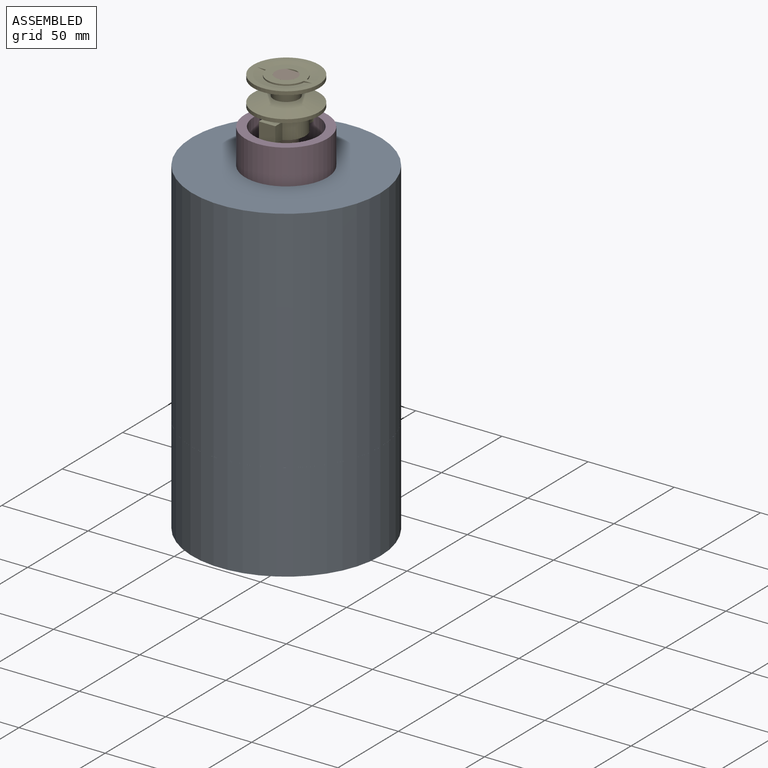
[diagram: assembled view]
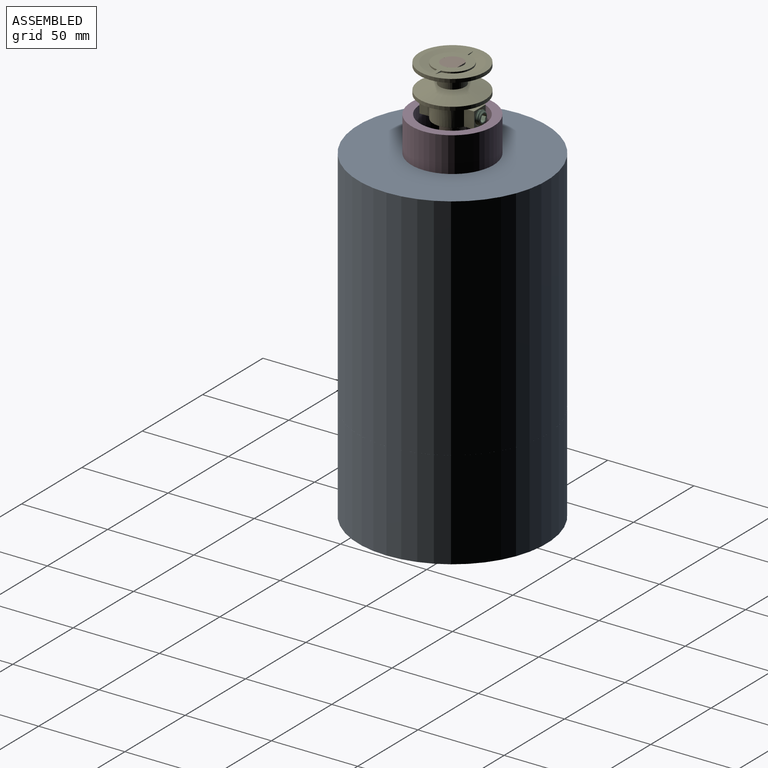
[diagram: assembled view, second angle]
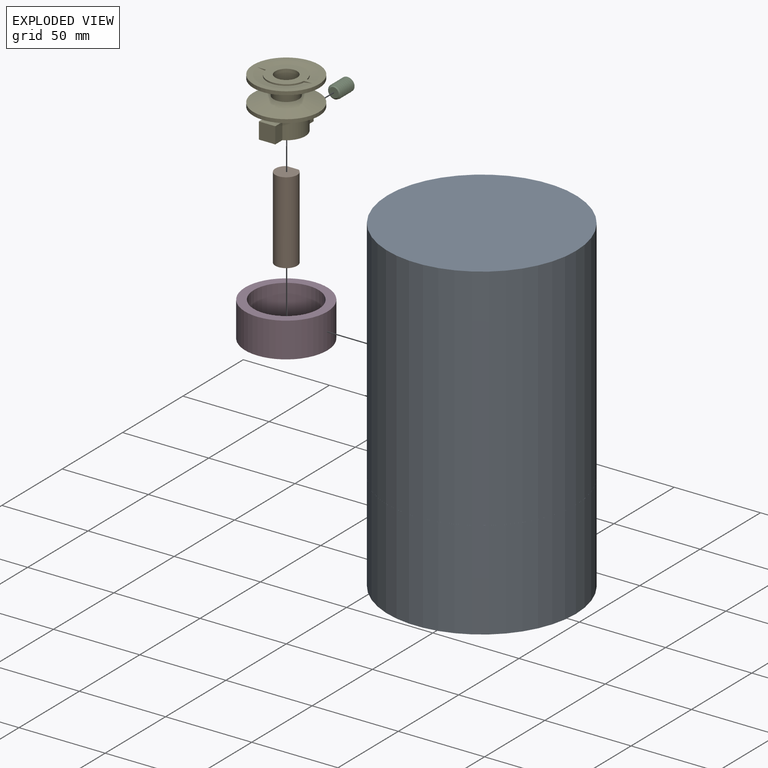
[diagram: exploded view]
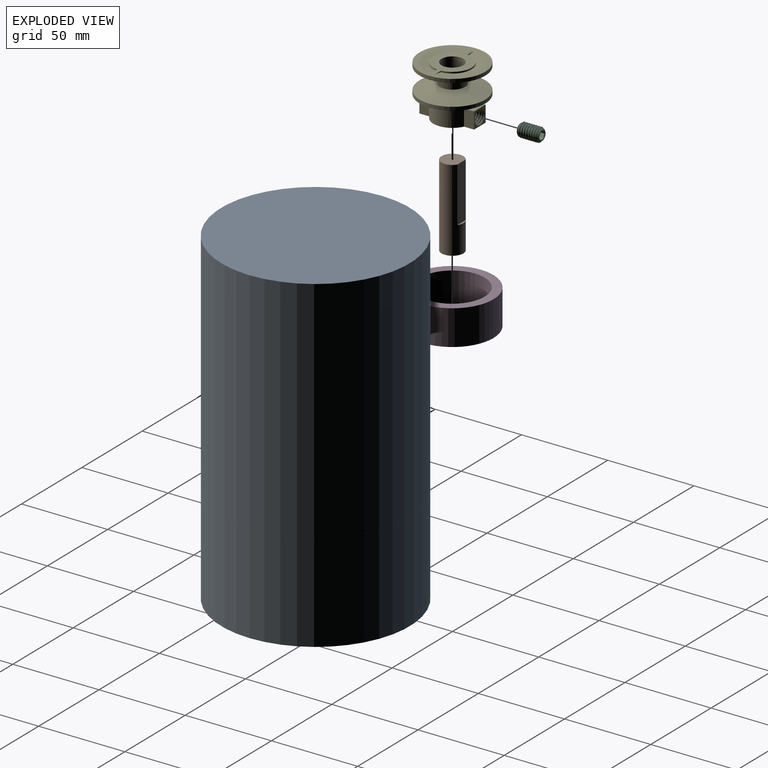
[diagram: exploded view, second angle]
ASSEMBLY  parts=5 mates=2
PART A: 7 faces, bbox 109.2x109.2x190.2 mm
  f0: cylinder r=54.61mm len=109.22mm, axis (0,0,1), area 5011.3mm2, adj f1,f2
  f1: plane 109.22x109.22mm, normal (0,0,-1), area 4.4mm2, adj f0,f3
  f2: plane 109.22x109.22mm, normal (0,0,1), area 9369mm2, adj f0
  f3: cylinder r=54.6mm len=118.49mm, axis (0,0,1), area 40647.7mm2, adj f1,f6
  f4: cylinder r=54.61mm len=109.22mm, axis (0,0,1), area 19609.6mm2, adj f5,f6
  f5: plane 109.22x109.22mm, normal (0,0,-1), area 9369mm2, adj f4
  f6: plane 109.22x109.22mm, normal (0,0,1), area 4.4mm2, adj f3,f4
PART B: 5 faces, bbox 12.7x12.7x47.6 mm
  f0: cylinder r=6.35mm len=47.63mm, axis (0,0,1), area 1665.3mm2, adj f1,f2,f3,f4
  f1: plane 12.7x11.65mm, normal (0,0,1), area 121.7mm2, adj f0,f3
  f2: plane 12.7x12.7mm, normal (0,0,-1), area 126.7mm2, adj f0
  f3: plane 31.75x6.99mm, normal (0,1,0), area 221.8mm2, adj f0,f1,f4
  f4: plane 6.99x1.05mm, normal (0,0,1), area 5mm2, adj f0,f3
PART C: 21 faces, bbox 9x14.5x9 mm
  f0: cone r=3.97mm half-angle=45deg, axis (0,1,0), area 17.9mm2, adj f1,f4,f5,f6,f7
  f1: cylinder r=3.97mm len=10.56mm, axis (0,1,0), area 32.9mm2, adj f0,f2,f5,f6
  f2: cone r=2.9mm half-angle=45deg, axis (0,-1,0), area 17.9mm2, adj f1,f3,f5,f6,f7
  f3: plane 5.8x5.8mm, normal (0,1,0), area 9.9mm2, adj f2,f8,f9,f10,f11,f12,f13
  f4: plane 5.8x5.8mm, normal (0,-1,0), area 26.4mm2, adj f0
  f5: bspline ~13.1x8.09mm, area 189.8mm2, adj f0,f1,f2,f7
  f6: bspline ~13.1x8.09mm, area 189.3mm2, adj f0,f1,f2,f7
  f7: bspline ~12.88x6.1mm, area 29.8mm2, adj f0,f2,f5,f6
  f8: cone r=2.29mm half-angle=45deg, axis (0,1,0), area 0mm2, adj f3,f15
  f9: cone r=2.29mm half-angle=45deg, axis (0,1,0), area 0mm2, adj f3,f16
  f10: cone r=2.29mm half-angle=45deg, axis (0,1,0), area 0mm2, adj f3,f17
  f11: cone r=2.29mm half-angle=45deg, axis (0,1,0), area 0mm2, adj f3,f18
  f12: cone r=2.29mm half-angle=45deg, axis (0,1,0), area 0mm2, adj f3,f19
  f13: cone r=2.29mm half-angle=45deg, axis (0,1,0), area 0mm2, adj f3,f20
  f14: plane 4.58x3.97mm, normal (0,1,0), area 13.6mm2, adj f15,f16,f17,f18,f19,f20
  f15: plane 3.35x2.85mm, normal (-0.87,0,0.5), area 5.2mm2, adj f8,f14,f16,f20
  f16: plane 3.35x3.16mm, normal (0,0,1), area 5.2mm2, adj f9,f14,f15,f17
  f17: plane 3.35x2.85mm, normal (0.87,0,0.5), area 5.2mm2, adj f10,f14,f16,f18
  f18: plane 3.35x2.85mm, normal (0.87,0,-0.5), area 5.2mm2, adj f11,f14,f17,f19
  f19: plane 3.35x3.16mm, normal (0,0,-1), area 5.2mm2, adj f12,f14,f18,f20
  f20: plane 3.35x2.85mm, normal (-0.87,0,-0.5), area 5.2mm2, adj f13,f14,f15,f19
PART D: 4 faces, bbox 47.6x47.6x20.3 mm
  f0: cylinder r=18.73mm len=37.47mm, axis (0,0,-1), area 2391.7mm2, adj f2,f3
  f1: cylinder r=23.81mm len=47.63mm, axis (0,0,-1), area 3040.2mm2, adj f2,f3
  f2: plane 47.63x47.63mm, normal (0,0,1), area 679mm2, adj f0,f1
  f3: plane 47.63x47.63mm, normal (0,0,-1), area 679mm2, adj f0,f1
PART E: 43 faces, bbox 38.2x38.2x29.4 mm
  f0: cylinder r=6.35mm len=29.36mm, axis (0,0,-1), area 1131.1mm2, adj f1,f2,f3,f26,f27,f28,f37,f38
  f1: bspline ~5.61x1.86mm, area 0mm2, adj f0,f2
  f2: bspline ~1.78x0.18mm, area 0mm2, adj f0,f1
  f3: cylinder r=3.09mm len=8.8mm, axis (0,1,0), area 28.4mm2, adj f0,f4,f37,f41
  f4: cone r=4.12mm half-angle=45deg, axis (0,1,0), area 20.1mm2, adj f3,f5,f37,f38,f41
  f5: plane 9.53x9.53mm, normal (0,1,0), area 37.4mm2, adj f4,f6,f24,f25,f42
  f6: plane 9.53x5.83mm, normal (0,0,-1), area 48.7mm2, adj f5,f7,f24,f25
  f7: cylinder r=11.11mm len=22.23mm, axis (0,0,1), area 754mm2, adj f6,f8,f9,f10,f11,f12,f13,f19
  f8: cone r=15.88mm half-angle=80deg, axis (0,0,1), area 193.7mm2, adj f7,f9,f13,f23
  f9: plane 4.85x0.91mm, normal (0,-1,0), area 2mm2, adj f7,f8,f13
  f10: plane 4.85x0.91mm, normal (0,1,0), area 2mm2, adj f7,f11,f13
  f11: cone r=15.88mm half-angle=80deg, axis (0,0,1), area 193.7mm2, adj f7,f10,f12,f13
  f12: plane 4.85x0.91mm, normal (0,1,0), area 2mm2, adj f7,f11,f13
  f13: plane 38.1x38.1mm, normal (0,0,1), area 370.2mm2, adj f7,f8,f9,f10,f11,f12,f14,f23
  f14: cylinder r=19.05mm len=38.1mm, axis (0,0,1), area 245.6mm2, adj f13,f15
  f15: cone r=7.37mm half-angle=73deg, axis (0,0,1), area 1013.9mm2, adj f14,f16
  f16: cylinder r=7.37mm len=14.73mm, axis (0,0,1), area 250.6mm2, adj f15,f17
  f17: cone r=19.05mm half-angle=73deg, axis (0,0,-1), area 1013.9mm2, adj f16,f18
  f18: cylinder r=19.05mm len=38.1mm, axis (0,0,1), area 245.6mm2, adj f17,f28
  f19: plane 9.53x5.83mm, normal (-1,0,0), area 55.6mm2, adj f7,f20,f21,f42
  f20: plane 9.53x9.53mm, normal (0,-1,0), area 90.7mm2, adj f19,f21,f22,f42
  f21: plane 9.53x5.83mm, normal (0,0,-1), area 48.7mm2, adj f7,f19,f20,f22
  f22: plane 9.53x5.83mm, normal (1,0,0), area 55.6mm2, adj f7,f20,f21,f42
  f23: plane 4.85x0.91mm, normal (0,-1,0), area 2mm2, adj f7,f8,f13
  f24: plane 9.53x5.83mm, normal (1,0,0), area 55.6mm2, adj f5,f6,f7,f42
  f25: plane 9.53x5.83mm, normal (-1,0,0), area 55.6mm2, adj f5,f6,f7,f42
  f26: bspline ~6.78x3.97mm, area 0mm2, adj f0,f27
  f27: bspline ~6.78x3.97mm, area 1.1mm2, adj f0,f26,f37
  f28: plane 38.1x38.1mm, normal (0,0,-1), area 631.4mm2, adj f0,f18,f29,f30,f31,f32,f33,f34
  f29: cone r=11.11mm half-angle=80deg, axis (0,0,-1), area 193.7mm2, adj f28,f30,f31,f32
  f30: plane 4.85x0.91mm, normal (0,-1,0), area 2mm2, adj f28,f29,f31
  f31: cylinder r=11.11mm len=22.11mm, axis (0,0,1), area 27.4mm2, adj f28,f29,f30,f32
  f32: plane 4.85x0.91mm, normal (0,-1,0), area 2mm2, adj f28,f29,f31
  f33: plane 4.85x0.91mm, normal (0,1,0), area 2mm2, adj f28,f34,f36
  f34: cone r=11.11mm half-angle=80deg, axis (0,0,-1), area 193.7mm2, adj f28,f33,f35,f36
  f35: plane 4.85x0.91mm, normal (0,1,0), area 2mm2, adj f28,f34,f36
  f36: cylinder r=11.11mm len=22.11mm, axis (0,0,1), area 27.4mm2, adj f28,f33,f34,f35
  f37: bspline ~10.98x7.94mm, area 151mm2, adj f0,f3,f4,f27,f38
  f38: bspline ~10.05x7.94mm, area 30mm2, adj f0,f4,f37,f41
  f39: bspline ~2.81x1.86mm, area 0mm2, adj f0,f40
  f40: cylinder r=3.09mm len=3.2mm, axis (0,1,0), area 0.4mm2, adj f0,f39,f41
  f41: bspline ~10.45x7.94mm, area 149.8mm2, adj f0,f3,f4,f38,f40
  f42: plane 31.75x22.23mm, normal (0,0,1), area 358.7mm2, adj f0,f5,f7,f19,f20,f22,f24,f25
PLACE A at identity fixed
PLACE B at identity fixed
PLACE C rot(axis=(0,1,0),180deg) t=(0,2.12,-8.33)mm
PLACE D at identity fixed
PLACE E rot(axis=(0,1,0),180deg) t=(0,0,-8.33)mm
MATE fastened E.f3 <-> C.f8  axis (0,1,0) through (0,15.87,-24.6)mm
MATE fastened B.f0 <-> E.f0  axis (0,0,1) through (0,0,0)mm
